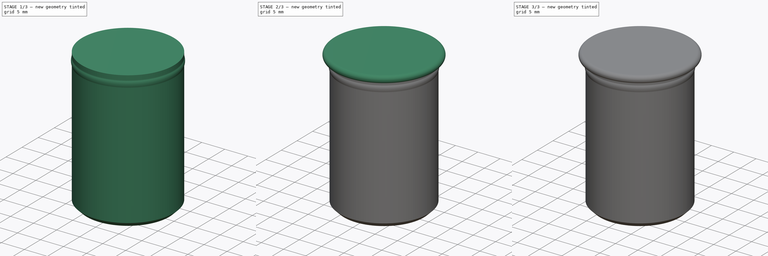
[diagram: build sequence overview — one tinted view per stage of 3, left to right]
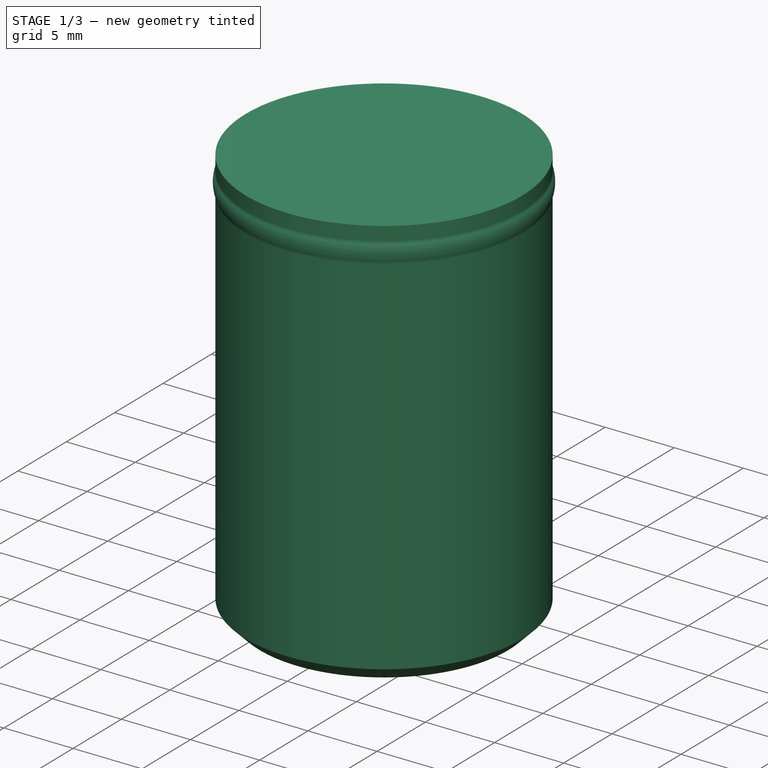
[diagram: stage 1 of 3 — iso view after this stage's code; geometry added in this stage tinted green]
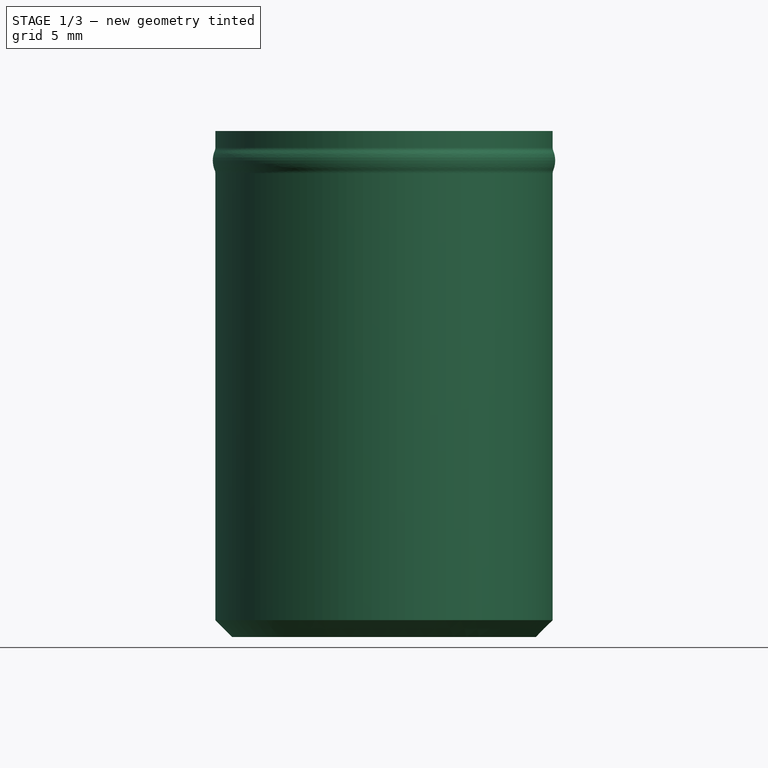
[diagram: stage 1 of 3 — front view after this stage's code; geometry added in this stage tinted green]
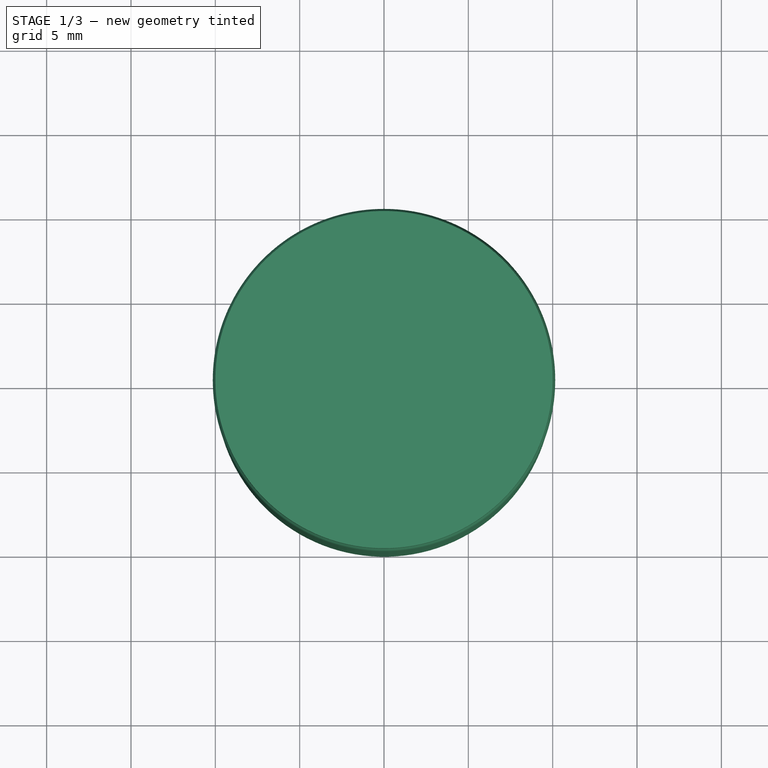
[diagram: stage 1 of 3 — top view after this stage's code; geometry added in this stage tinted green]
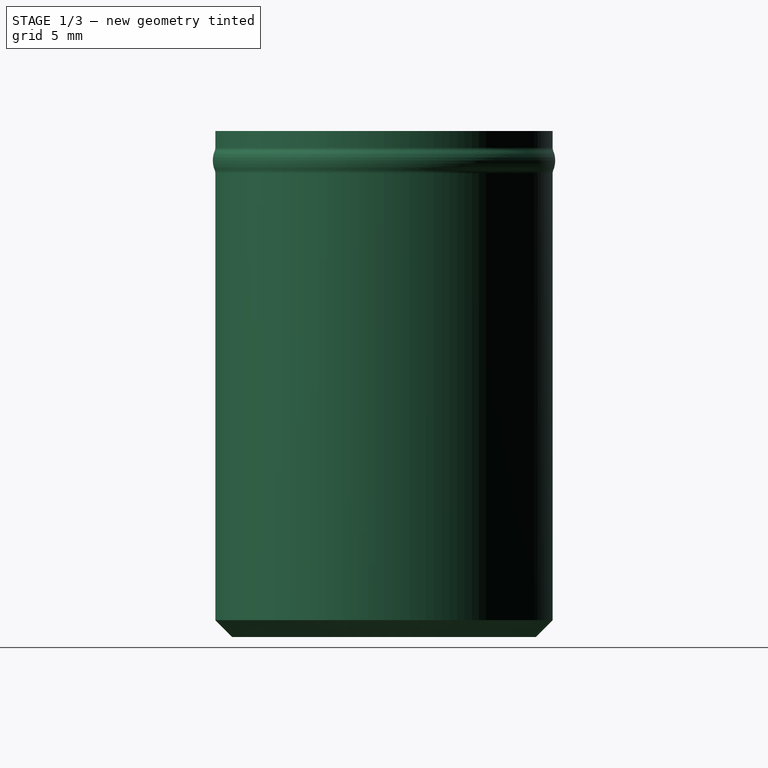
[diagram: stage 1 of 3 — right view after this stage's code; geometry added in this stage tinted green]
FCSTD DOCUMENT  (FreeCAD 0.22R33798 (Git))
Label: Capsule2
License: All rights reserved
LicenseURL: http://en.wikipedia.org/wiki/All_rights_reserved
objects: Sketcher::SketchObject×3, PartDesign::Revolution×2, PartDesign::Chamfer×2, PartDesign::Body×2, PartDesign::ShapeBinder×1, PartDesign::Fillet×1, Spreadsheet::Sheet×1
note: 16 computed .brp shape members not serialized (recipe doc carries the construction recipe); baked Part::Feature solids carry a one-line shape summary decoded from their .brp

FEATURE [Sketcher::SketchObject] Sketch
  FullyConstrained = true
  MapMode = 5
  Placement = pos=(0,0,0) rot=(1,0,0;1.5708rad)
  Support = -> [XZ_Plane]
  expr: Constraints[14] = <<Spreadsheet>>.LockHeight
  expr: Constraints[15] = <<Spreadsheet>>.LockDistance
  expr: Constraints[23] = <<Spreadsheet>>.LockExpansion
  expr: Constraints[24] = <<Spreadsheet>>.LockRadius
  expr: Constraints[7] = <<Spreadsheet>>.CapsuleRadius
  expr: Constraints[8] = <<Spreadsheet>>.CapsuleHeight
  sketch-geometry (10):
    g0: LineSegment StartX=0 StartY=0 StartZ=0 EndX=-10 EndY=0 EndZ=0
    g1: LineSegment StartX=-10 StartY=30 StartZ=0 EndX=0 EndY=30 EndZ=0
    g2: LineSegment StartX=0 StartY=30 StartZ=0 EndX=0 EndY=0 EndZ=0
    g3: LineSegment StartX=-10 StartY=29 StartZ=0 EndX=-10 EndY=30 EndZ=0
    g4: LineSegment StartX=-10 StartY=0 StartZ=0 EndX=-10 EndY=27.5 EndZ=0
    g5: LineSegment StartX=-10 StartY=27.5 StartZ=0 EndX=-10 EndY=29 EndZ=0
    g6: ArcOfCircle CenterX=-10.45 CenterY=29 CenterZ=0 NormalX=0 NormalY=0 NormalZ=1 AngleXU=0 Radius=0.45 StartAngle=5.88839 EndAngle=6.28319
    g7: ArcOfCircle CenterX=-10.45 CenterY=27.5 CenterZ=0 NormalX=0 NormalY=0 NormalZ=1 AngleXU=0 Radius=0.45 StartAngle=2.64e-14 EndAngle=0.394791
    g8: ArcOfCircle CenterX=-8.65 CenterY=28.25 CenterZ=0 NormalX=0 NormalY=0 NormalZ=1 AngleXU=0 Radius=1.5 StartAngle=2.7468 EndAngle=3.53638
    g9: LineSegment StartX=-8.65 StartY=28.25 StartZ=0 EndX=-10.15 EndY=28.25 EndZ=0
  constraints (27):
    c: Coincident(g3,g1)
    c: Coincident(g1,g2)
    c: Coincident(g2,g0)
    c: Horizontal(g0)
    c: Horizontal(g1)
    c: Vertical(g2)
    c: Coincident(g0,g-1)
    c: DistanceX(g1,g1) = 10
    c: DistanceY(g2,g2) = 30
    c: Coincident(g5,g3)
    c: Vertical(g3)
    c: Coincident(g4,g5)
    c: Vertical(g4)
    c: Vertical(g5)
    c: DistanceY(g5,g5) = 1.5
    c: DistanceY(g3,g3) = 1
    c: Tangent(g6,g3) = -1.5708
    c: Tangent(g7,g4) = -1.5708
    c: Equal(g7,g6)
    c: Tangent(g8,g6) = 1.5708
    c: Coincident(g9,g8)
    c: PointOnObject(g9,g8)
    c: Horizontal(g9)
    c: DistanceX(g9,g1) = 0.15
    c: Radius(g8) = 1.5
    c: Tangent(g8,g7) = 1.5708
    c: Coincident(g0,g4)
FEATURE [PartDesign::Revolution] Revolution
  Angle = 360
  Axis = (0,-2e-16,1)
  Base = (0,0,0)
  Placement = pos=(0,0,0) rot=(1,0,0;1.5708rad)
  Profile = -> Sketch
  ReferenceAxis = -> Sketch [V_Axis]
FEATURE [PartDesign::Body] Body001  label="Cap"
  Group = -> [ShapeBinder,Sketch001,Revolution001,Fillet,Chamfer]
  Origin = -> Origin001
  Placement = pos=(0,0,0.27) rot=(0,0,1;0rad)
  Tip = -> Chamfer
  expr: .Placement.Base.z = <<Spreadsheet>>.CapInset
FEATURE [Spreadsheet::Sheet] Spreadsheet
  cells = B2='CapsuleRadius; C2(CapsuleRadius)==10 mm; B3='CapsuleHeight; C3(CapsuleHeight)==30 mm; B4='WallThickness; C4(WallThickness)==0.6 mm; B5='Tolerance; C5(Tolerance)==0.12 mm; B6='LockExpansion; C6(LockExpansion)==0.15 mm; B7='LockHeight; C7(LockHeight)==LockExpansion * 10; B8='LockRadius; C8(LockRadius)==LockExpansion * 10; B9='LockDistance; C9(LockDistance)==CapsuleHeight / 30; B10='CapTopThickness; C10(CapTopThickness)==1.6 mm; B11='CapWallThickness; C11(CapWallThickness)==0.8 mm; B12='CapUnderhang; C12(CapUnderhang)==0.8 mm; B13='CapOverhang; C13(CapOverhang)==1.3 mm; B14='CapInset; C14(CapInset)==Tolerance + LockExpansion
FEATURE [PartDesign::Chamfer] Chamfer001
  Angle = 45
  Base = -> Revolution [Edge6]
  BaseFeature = -> Revolution
  ChamferType = 0
  FlipDirection = false
  Placement = pos=(0,0,0) rot=(1,0,0;1.5708rad)
  Size = 1
  Size2 = 1
  SupportTransform = false
  UseAllEdges = false
FEATURE [Sketcher::SketchObject] Sketch002
  ExternalGeometry = -> [Sketch]
  FullyConstrained = true
  MapMode = 5
  Placement = pos=(0,0,0) rot=(1,0,0;1.5708rad)
  Support = -> [XZ_Plane]
  expr: Constraints[11] = <<Spreadsheet>>.WallThickness
  sketch-geometry (8):
    g0: LineSegment StartX=-10 StartY=29 StartZ=0 EndX=-9.4 EndY=29 EndZ=0
    g1: LineSegment StartX=-10.0346 StartY=28.8269 StartZ=0 EndX=-9.43462 EndY=28.8269 EndZ=0
    g2: LineSegment StartX=-10.0346 StartY=27.6731 StartZ=0 EndX=-9.43462 EndY=27.6731 EndZ=0
    g3: LineSegment StartX=-10 StartY=27.5 StartZ=0 EndX=-9.4 EndY=27.5 EndZ=0
    g4: ArcOfCircle CenterX=-9.85 CenterY=29 CenterZ=0 NormalX=0 NormalY=0 NormalZ=1 AngleXU=0 Radius=0.45 StartAngle=5.88839 EndAngle=6.28319
    g5: ArcOfCircle CenterX=-8.05 CenterY=28.25 CenterZ=0 NormalX=0 NormalY=0 NormalZ=1 AngleXU=0 Radius=1.5 StartAngle=2.7468 EndAngle=3.53638
    g6: ArcOfCircle CenterX=-9.85 CenterY=27.5 CenterZ=0 NormalX=0 NormalY=0 NormalZ=1 AngleXU=0 Radius=0.45 StartAngle=-3.97407e-11 EndAngle=0.394791
    g7: LineSegment StartX=-9.4 StartY=29 StartZ=0 EndX=-9.4 EndY=30 EndZ=0
  constraints (24):
    c: Coincident(g0,g-3)
    c: Horizontal(g0)
    c: Coincident(g1,g-4)
    c: Horizontal(g1)
    c: Coincident(g2,g-5)
    c: Horizontal(g2)
    c: Coincident(g3,g-5)
    c: Horizontal(g3)
    c: Equal(g0,g1)
    c: Equal(g1,g2)
    c: Equal(g2,g3)
    c: DistanceX(g0,g0) = 0.6
    c: Coincident(g4,g0)
    c: Coincident(g4,g1)
    c: Equal(g4,g-3)
    c: Coincident(g5,g4)
    c: Coincident(g5,g2)
    c: Equal(g5,g-4)
    c: Coincident(g6,g5)
    c: Coincident(g6,g3)
    c: Equal(g6,g-5)
    c: Coincident(g7,g4)
    c: PointOnObject(g7,g-6)
    c: Vertical(g7)
FEATURE [PartDesign::Body] Body
  Group = -> [Sketch,Revolution,Chamfer001,Sketch002]
  Origin = -> Origin
  Tip = -> Chamfer001
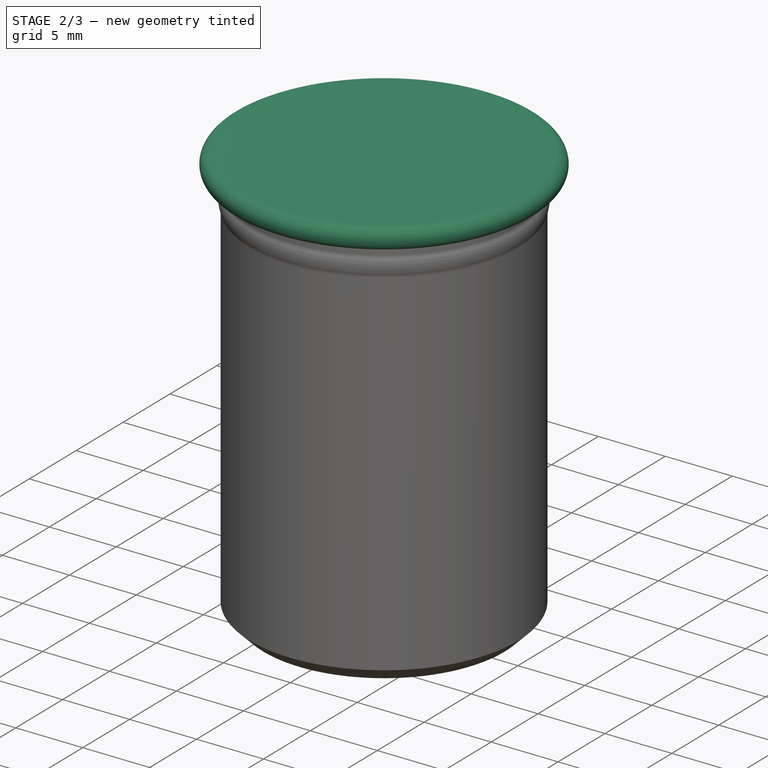
[diagram: stage 2 of 3 — iso view after this stage's code; geometry added in this stage tinted green]
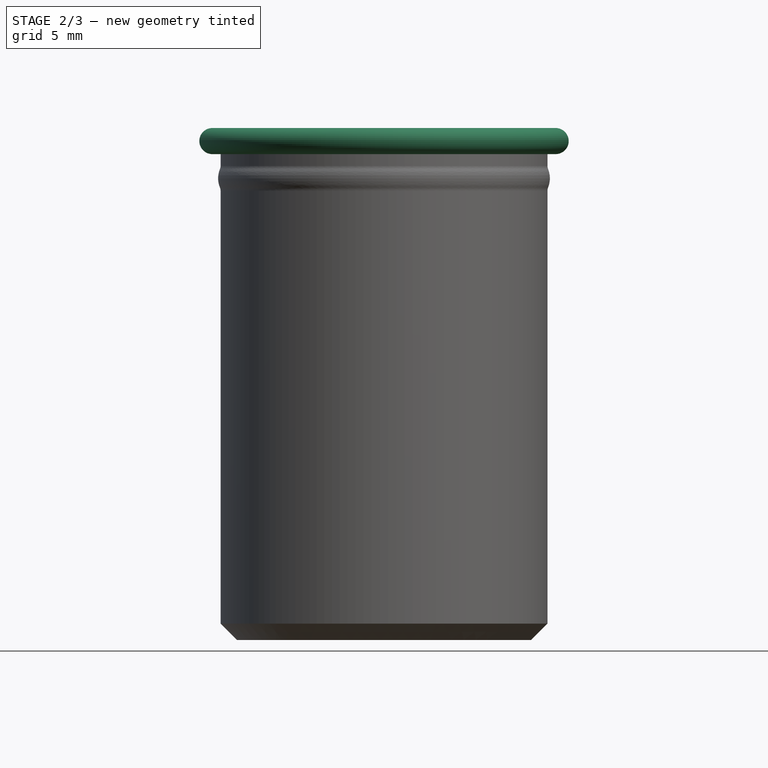
[diagram: stage 2 of 3 — front view after this stage's code; geometry added in this stage tinted green]
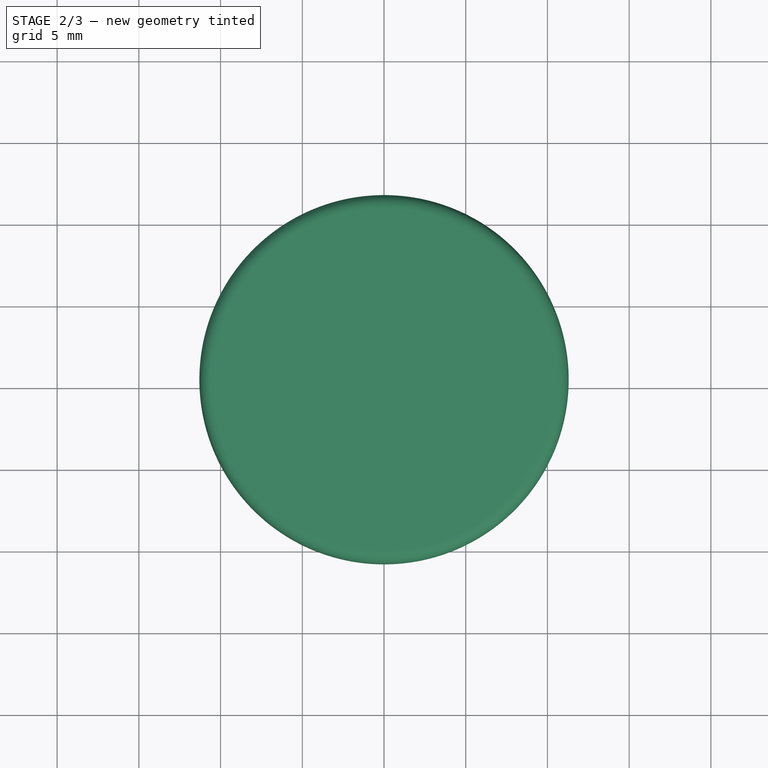
[diagram: stage 2 of 3 — top view after this stage's code; geometry added in this stage tinted green]
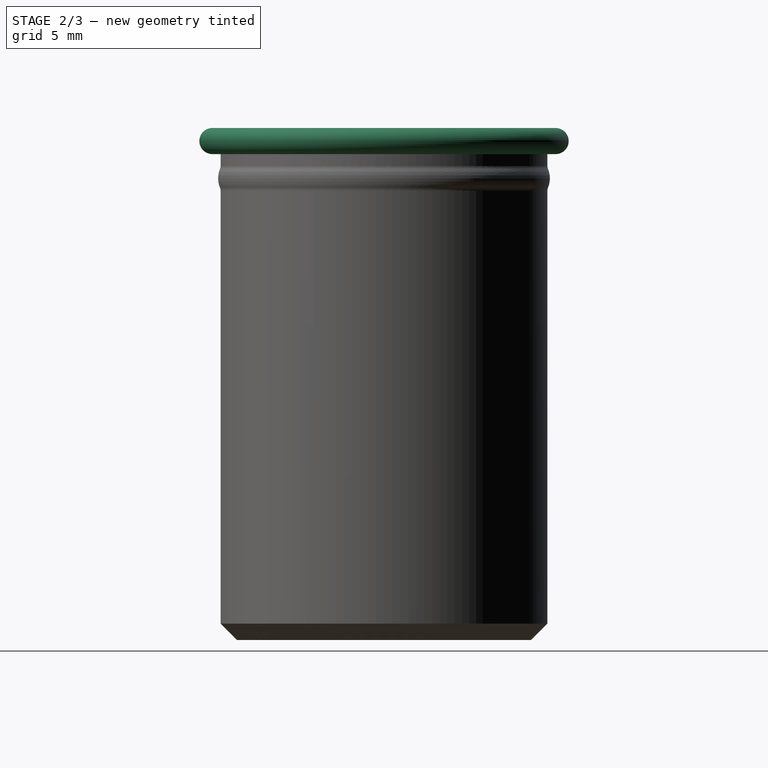
[diagram: stage 2 of 3 — right view after this stage's code; geometry added in this stage tinted green]
FEATURE [PartDesign::ShapeBinder] ShapeBinder
  Placement = pos=(0,0,0) rot=(1,0,0;1.5708rad)
  Support = -> [Sketch]
  TraceSupport = false
FEATURE [Sketcher::SketchObject] Sketch001
  ExternalGeometry = -> [ShapeBinder]
  FullyConstrained = true
  MapMode = 5
  Placement = pos=(0,0,0) rot=(1,0,0;1.5708rad)
  Support = -> [XZ_Plane001]
  expr: Constraints[18] = <<Spreadsheet>>.CapUnderhang
  expr: Constraints[1] = <<Spreadsheet>>.CapTopThickness
  expr: Constraints[37] = <<Spreadsheet>>.CapWallThickness
  expr: Constraints[38] = <<Spreadsheet>>.CapInset
  expr: Constraints[44] = <<Spreadsheet>>.CapOverhang
  expr: Constraints[54] = <<Spreadsheet>>.WallThickness + <<Spreadsheet>>.Tolerance
  sketch-geometry (20):
    g0: LineSegment StartX=-10.5 StartY=31.33 StartZ=0 EndX=0 EndY=31.33 EndZ=0
    g1: LineSegment StartX=-9.28 StartY=29.73 StartZ=0 EndX=-9.28 EndY=29 EndZ=0
    g2: LineSegment StartX=-10 StartY=29 StartZ=0 EndX=-9.28 EndY=29 EndZ=0
    g3: ArcOfCircle CenterX=-9.73 CenterY=29 CenterZ=0 NormalX=0 NormalY=0 NormalZ=1 AngleXU=0 Radius=0.45 StartAngle=5.88839 EndAngle=6.28319
    g4: LineSegment StartX=-10.0346 StartY=28.8269 StartZ=0 EndX=-9.31462 EndY=28.8269 EndZ=0
    g5: LineSegment StartX=-10.0346 StartY=27.6731 StartZ=0 EndX=-9.31462 EndY=27.6731 EndZ=0
    g6: LineSegment StartX=-10 StartY=27.5 StartZ=0 EndX=-9.28 EndY=27.5 EndZ=0
    g7: ArcOfCircle CenterX=-7.93 CenterY=28.25 CenterZ=0 NormalX=0 NormalY=0 NormalZ=1 AngleXU=0 Radius=1.5 StartAngle=2.7468 EndAngle=3.53638
    g8: ArcOfCircle CenterX=-9.73 CenterY=27.5 CenterZ=0 NormalX=0 NormalY=0 NormalZ=1 AngleXU=0 Radius=0.45 StartAngle=2.65e-14 EndAngle=0.394791
    g9: LineSegment StartX=-9.28 StartY=27.5 StartZ=0 EndX=-9.28 EndY=26.7 EndZ=0
    g10: LineSegment StartX=-10.5 StartY=29.73 StartZ=0 EndX=-9.28 EndY=29.73 EndZ=0
    g11: LineSegment StartX=-9.28 StartY=26.7 StartZ=0 EndX=-8.48 EndY=26.7 EndZ=0
    g12: LineSegment StartX=-8.48 StartY=26.7 StartZ=0 EndX=0 EndY=26.7 EndZ=0
    g13: LineSegment StartX=-9.28 StartY=29.73 StartZ=0 EndX=-8.48 EndY=29.73 EndZ=0
    g14: LineSegment StartX=-8.48 StartY=29.73 StartZ=0 EndX=0 EndY=29.73 EndZ=0
    g15: LineSegment StartX=0 StartY=26.7 StartZ=0 EndX=0 EndY=29.73 EndZ=0
    g16: LineSegment StartX=0 StartY=29.73 StartZ=0 EndX=0 EndY=31.33 EndZ=0
    g17: LineSegment StartX=-8.48 StartY=26.7 StartZ=0 EndX=-8.48 EndY=29.73 EndZ=0
    g18: ArcOfCircle CenterX=-10.5 CenterY=30.53 CenterZ=0 NormalX=0 NormalY=0 NormalZ=1 AngleXU=0 Radius=0.8 StartAngle=1.5708 EndAngle=4.71239
    g19: LineSegment StartX=-10.5 StartY=30.53 StartZ=0 EndX=-11.3 EndY=30.53 EndZ=0
  constraints (56):
    c: Horizontal(g0)
    c: DistanceY(g14,g0) = 1.6
    c: Vertical(g1)
    c: Coincident(g2,g1)
    c: Horizontal(g2)
    c: Coincident(g3,g1)
    c: Horizontal(g4)
    c: Coincident(g3,g4)
    c: Horizontal(g5)
    c: Horizontal(g6)
    c: Coincident(g7,g3)
    c: Coincident(g7,g5)
    c: Coincident(g8,g7)
    c: Coincident(g8,g6)
    c: Coincident(g9,g8)
    c: Vertical(g9)
    c: Coincident(g11,g9)
    c: Coincident(g15,g12)
    c: DistanceY(g9,g9) = 0.8
    c: Coincident(g10,g13)
    c: Horizontal(g10)
    c: Coincident(g10,g1)
    c: Coincident(g16,g0)
    c: Coincident(g11,g12)
    c: Horizontal(g11)
    c: Horizontal(g12)
    c: Coincident(g13,g14)
    c: Horizontal(g13)
    c: Horizontal(g14)
    c: Coincident(g15,g16)
    c: Vertical(g15)
    c: Vertical(g16)
    c: PointOnObject(g-3,g15)
    c: Coincident(g14,g15)
    c: Coincident(g17,g11)
    c: Coincident(g17,g14)
    c: Vertical(g17)
    c: DistanceX(g11,g11) = 0.8
    c: DistanceY(g14,g-3) = 0.27
    c: Tangent(g18,g0) = 1.5708
    c: Tangent(g10,g18) = -1.5708
    c: Coincident(g19,g18)
    c: Horizontal(g19)
    c: PointOnObject(g19,g18)
    c: DistanceX(g19,g2) = 1.3
    c: Coincident(g2,g-4)
    c: Coincident(g4,g-5)
    c: Coincident(g5,g-6)
    c: Coincident(g6,g-6)
    c: Equal(g8,g-6)
    c: Equal(g7,g-5)
    c: Equal(g2,g4)
    c: Equal(g4,g5)
    c: Equal(g5,g6)
    c: DistanceX(g2,g2) = 0.72
    c: Equal(g3,g-4)
FEATURE [PartDesign::Revolution] Revolution001
  Angle = 360
  Axis = (0,-2e-16,1)
  Base = (0,0,0)
  Placement = pos=(0,0,0) rot=(1,0,0;1.5708rad)
  Profile = -> Sketch001
  ReferenceAxis = -> Sketch001 [V_Axis]
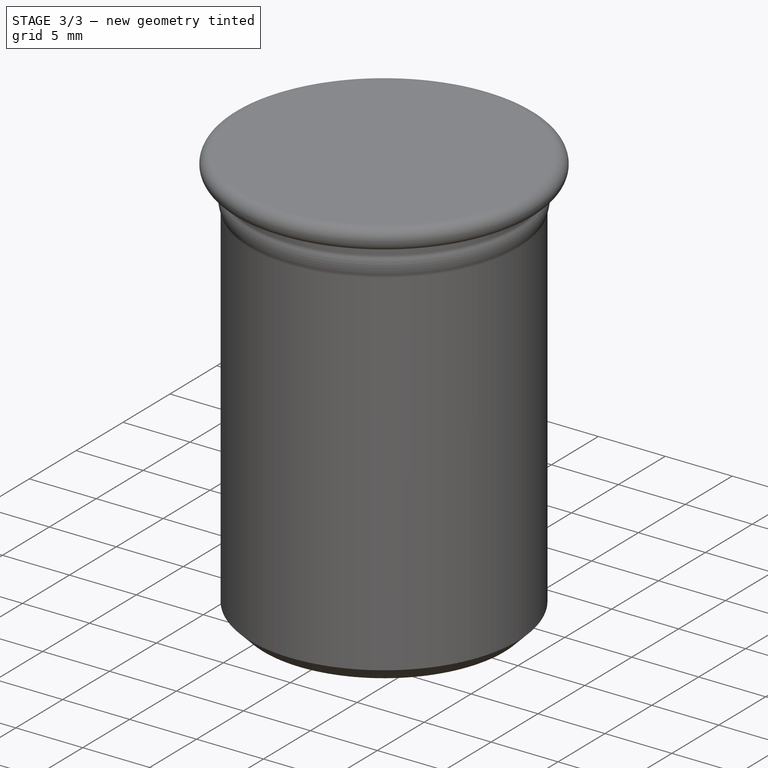
[diagram: stage 3 of 3 — iso view after this stage's code; geometry added in this stage tinted green]
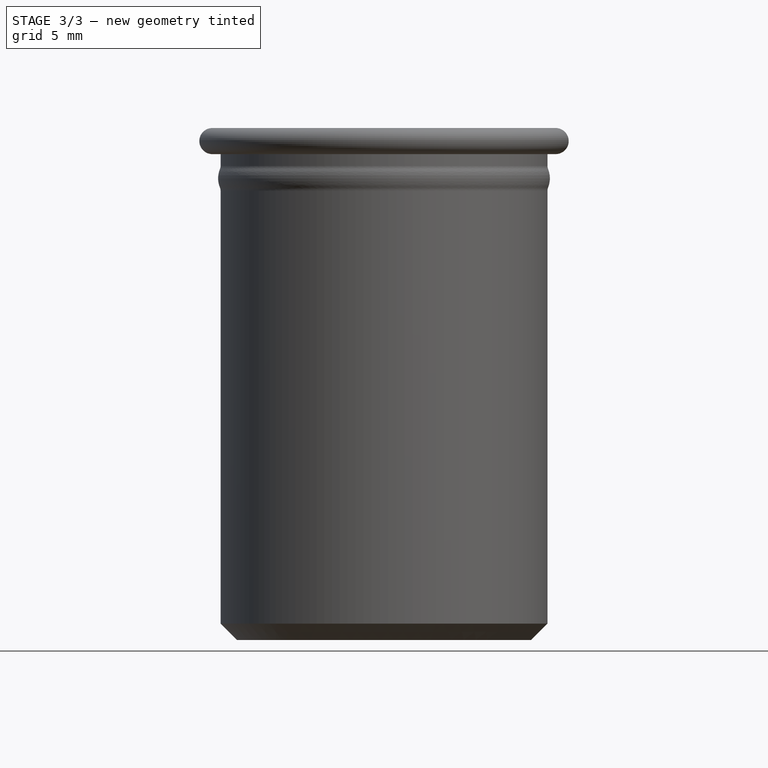
[diagram: stage 3 of 3 — front view after this stage's code; geometry added in this stage tinted green]
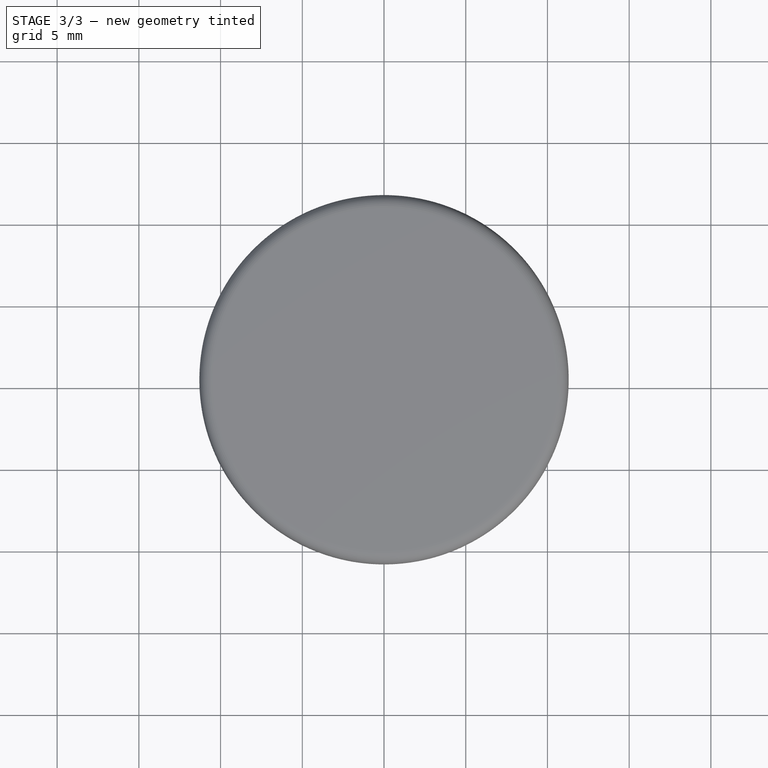
[diagram: stage 3 of 3 — top view after this stage's code; geometry added in this stage tinted green]
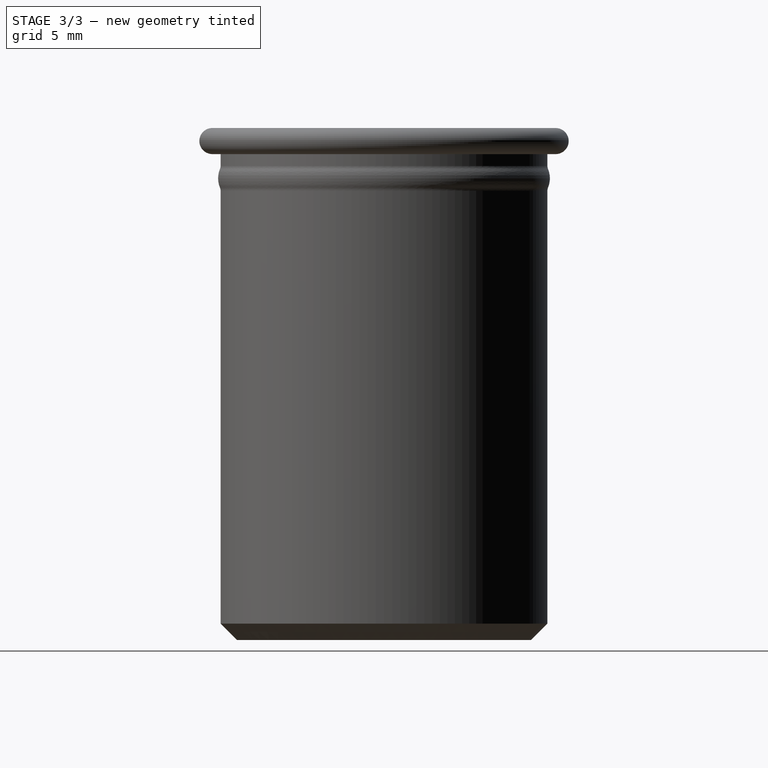
[diagram: stage 3 of 3 — right view after this stage's code; geometry added in this stage tinted green]
FEATURE [PartDesign::Fillet] Fillet
  Base = -> Revolution001 [Edge2]
  BaseFeature = -> Revolution001
  Placement = pos=(0,0,0) rot=(1,0,0;1.5708rad)
  Radius = 1
  SupportTransform = false
  UseAllEdges = false
  expr: Radius = <<Spreadsheet>>.LockDistance
FEATURE [PartDesign::Chamfer] Chamfer
  Angle = 45
  Base = -> Fillet [Edge6]
  BaseFeature = -> Fillet
  ChamferType = 0
  FlipDirection = false
  Placement = pos=(0,0,0) rot=(1,0,0;1.5708rad)
  Size = 0.4
  Size2 = 1
  SupportTransform = false
  UseAllEdges = false
  expr: Size = <<Spreadsheet>>.CapWallThickness / 2
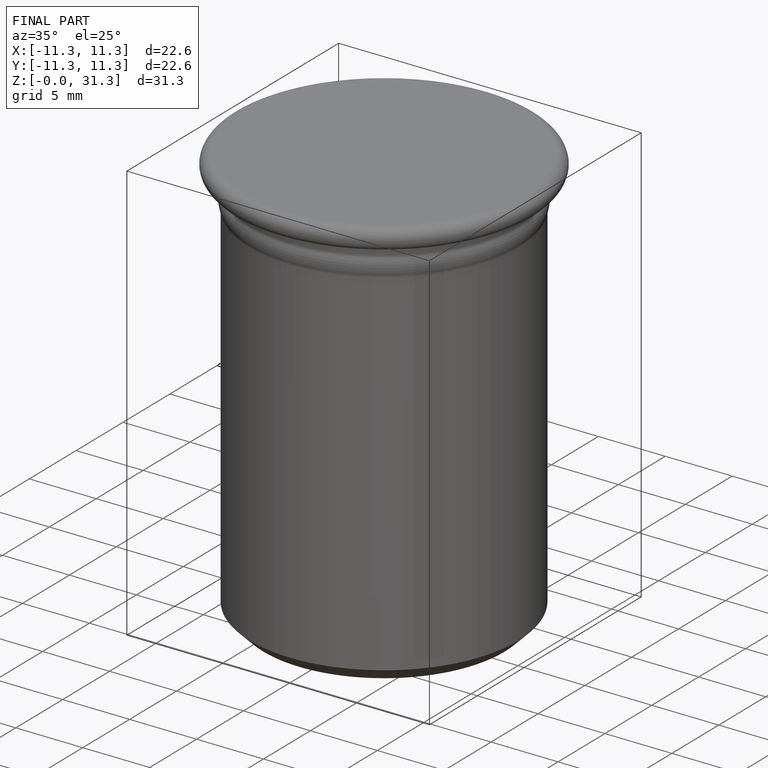
[diagram: finished part — iso view with bounding-box wireframe]
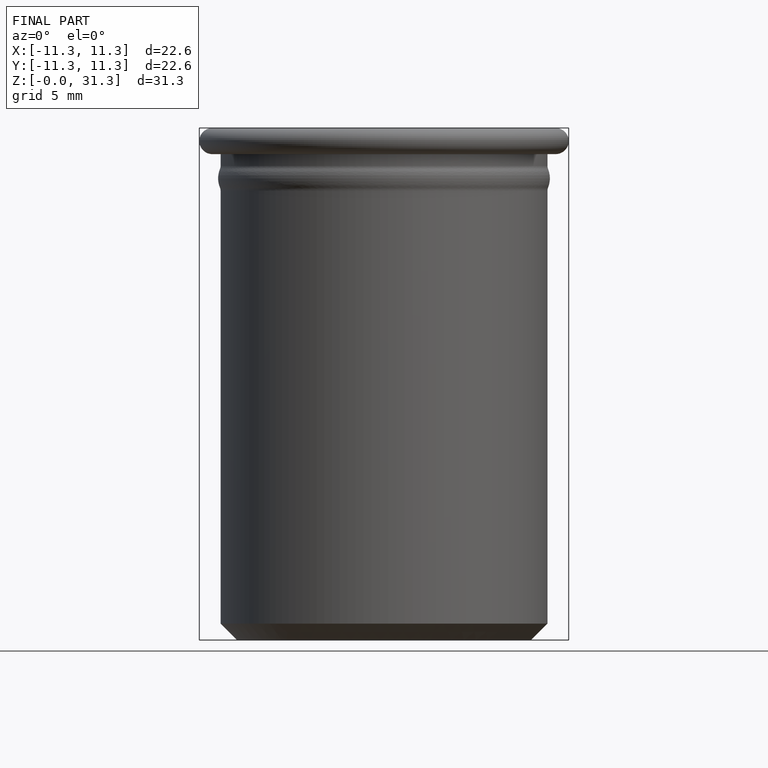
[diagram: finished part — front view with bounding-box wireframe]
